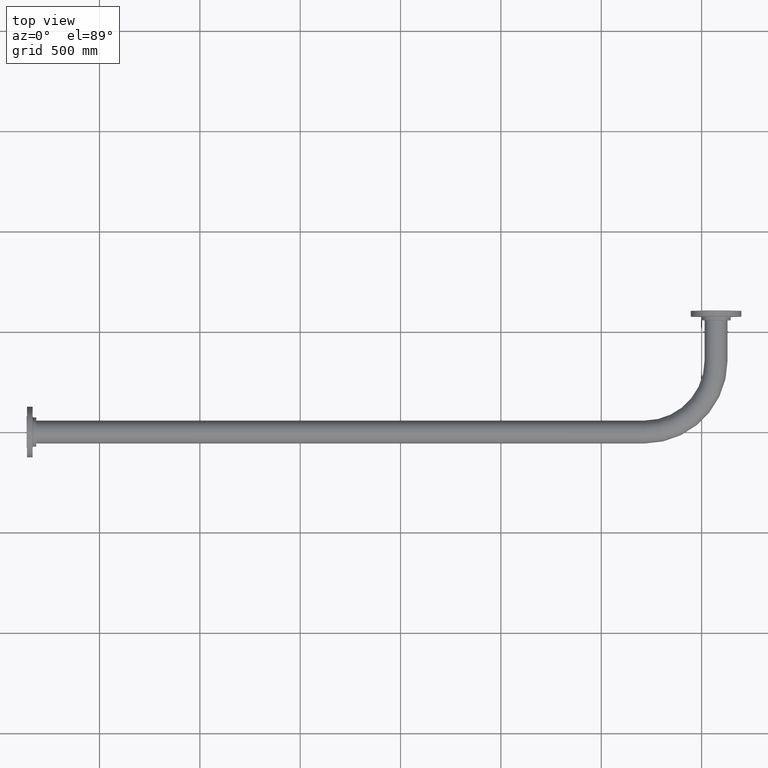
[diagram: clean part render]
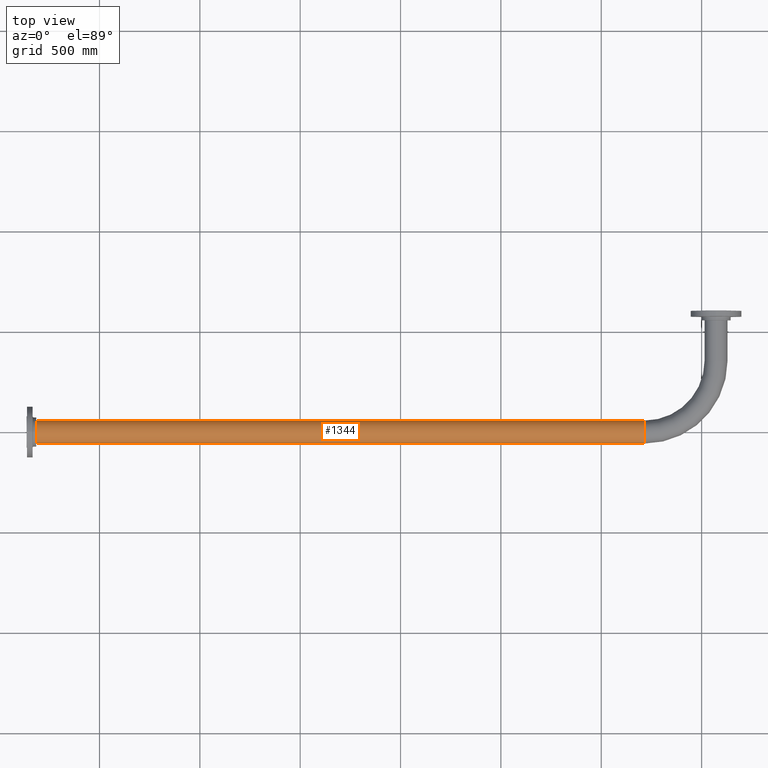
[diagram: same view with one face highlighted and labeled with its STEP entity id]
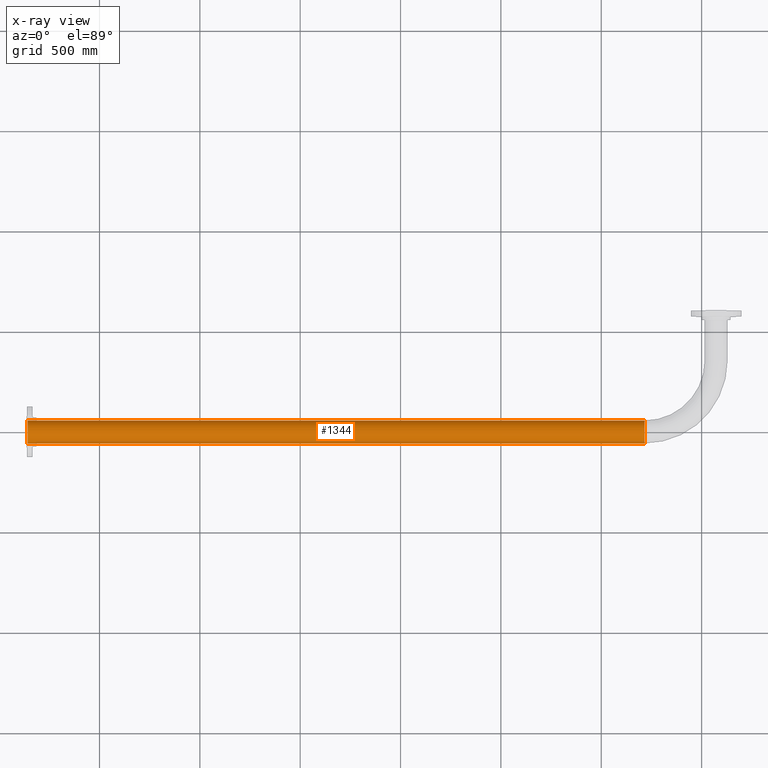
[diagram: x-ray of the same camera — body ghosted, the highlighted face saturated]
A machine part, top view. The second image highlights one B-rep face of the part: STEP entity #1344.
The next image is the same camera in x-ray: the body ghosted, the highlighted face saturated — about 0% of this face is hidden behind the body in this view.
In plain terms, the highlighted cylindrical surface (edge-blend (fillet) strip) has radius 57.15 mm, axis along (-1, 0, -0).
Its self-contained STEP definition (entity closure, byte-faithful):
#160 = VERTEX_POINT ( 'NONE', #268 ) ;
#187 = VERTEX_POINT ( 'NONE', #667 ) ;
#191 = LINE ( 'NONE', #847, #925 ) ;
#218 = CYLINDRICAL_SURFACE ( 'NONE', #636, 57.15000000000000568 ) ;
#262 = CARTESIAN_POINT ( 'NONE',  ( -1642.000000000000000, -57.15000000000031122, 6.998856457126432299E-15 ) ) ;
#268 = CARTESIAN_POINT ( 'NONE',  ( -4716.000000000000000, -57.15000000000000568, 6.998856457126395222E-15 ) ) ;
#288 = ORIENTED_EDGE ( 'NONE', *, *, #849, .T. ) ;
#354 = VECTOR ( 'NONE', #1695, 1000.000000000000000 ) ;
#387 = DIRECTION ( 'NONE',  ( -1.000000000000000000, 6.712647246080441804E-19, -2.958228394578794270E-31 ) ) ;
#390 = CIRCLE ( 'NONE', #1092, 57.15000000000012648 ) ;
#434 = DIRECTION ( 'NONE',  ( 1.000000000000000000, -6.712647246080441804E-19, 2.958228394578794270E-31 ) ) ;
#446 = ORIENTED_EDGE ( 'NONE', *, *, #1703, .F. ) ;
#574 = CIRCLE ( 'NONE', #1569, 57.15000000000000568 ) ;
#598 = CARTESIAN_POINT ( 'NONE',  ( -4716.000000000000000, 3.165684441250926505E-15, -1.183291357831517708E-27 ) ) ;
#621 = DIRECTION ( 'NONE',  ( 0.000000000000000000, 1.000000000000000000, 0.000000000000000000 ) ) ;
#636 = AXIS2_PLACEMENT_3D ( 'NONE', #598, #759, #621 ) ;
#667 = CARTESIAN_POINT ( 'NONE',  ( -1642.000000000000000, 57.14999999999994174, 9.899489784884591126E-16 ) ) ;
#759 = DIRECTION ( 'NONE',  ( 1.000000000000000000, -6.712647246080441804E-19, 2.958228394578794270E-31 ) ) ;
#778 = DIRECTION ( 'NONE',  ( 0.000000000000000000, -1.000000000000000000, 0.000000000000000000 ) ) ;
#804 = CARTESIAN_POINT ( 'NONE',  ( -1642.000000000000000, -1.822986206434503000E-13, -5.423418723394456162E-28 ) ) ;
#847 = CARTESIAN_POINT ( 'NONE',  ( -4716.000000000000000, 57.15000000000000568, -1.183291357831517708E-27 ) ) ;
#849 = EDGE_CURVE ( 'NONE', #160, #1015, #894, .T. ) ;
#875 = EDGE_CURVE ( 'NONE', #160, #1548, #574, .T. ) ;
#894 = LINE ( 'NONE', #1169, #354 ) ;
#925 = VECTOR ( 'NONE', #434, 1000.000000000000000 ) ;
#954 = EDGE_CURVE ( 'NONE', #187, #1015, #390, .T. ) ;
#1004 = EDGE_LOOP ( 'NONE', ( #1417, #288, #1600, #446 ) ) ;
#1015 = VERTEX_POINT ( 'NONE', #262 ) ;
#1092 = AXIS2_PLACEMENT_3D ( 'NONE', #804, #1228, #1461 ) ;
#1155 = FACE_OUTER_BOUND ( 'NONE', #1004, .T. ) ;
#1169 = CARTESIAN_POINT ( 'NONE',  ( -4716.000000000000000, -57.15000000000000568, 6.998856457125940839E-15 ) ) ;
#1228 = DIRECTION ( 'NONE',  ( 1.000000000000000000, 1.110223024625155678E-16, 5.916456789157588541E-31 ) ) ;
#1316 = CARTESIAN_POINT ( 'NONE',  ( -4716.000000000000000, 57.15000000000000568, -7.286116535847569391E-28 ) ) ;
#1344 = ADVANCED_FACE ( 'NONE', ( #1155 ), #218, .T. ) ;
#1417 = ORIENTED_EDGE ( 'NONE', *, *, #875, .F. ) ;
#1461 = DIRECTION ( 'NONE',  ( 0.000000000000000000, 1.000000000000000000, 1.732194188082238400E-17 ) ) ;
#1471 = CARTESIAN_POINT ( 'NONE',  ( -4716.000000000000000, 3.165684441250926505E-15, -1.183291357831517708E-27 ) ) ;
#1548 = VERTEX_POINT ( 'NONE', #1316 ) ;
#1569 = AXIS2_PLACEMENT_3D ( 'NONE', #1471, #387, #778 ) ;
#1600 = ORIENTED_EDGE ( 'NONE', *, *, #954, .F. ) ;
#1695 = DIRECTION ( 'NONE',  ( 1.000000000000000000, -6.712647246080441804E-19, 2.958228394578794270E-31 ) ) ;
#1703 = EDGE_CURVE ( 'NONE', #1548, #187, #191, .T. ) ;